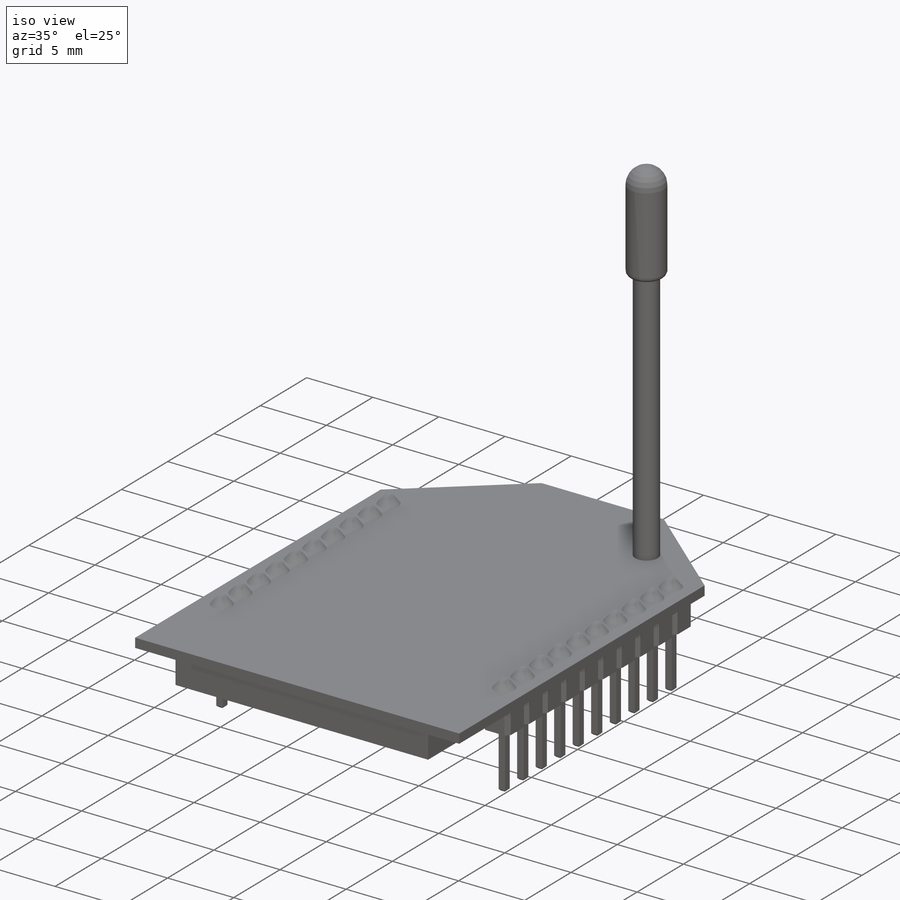
[diagram: iso view]
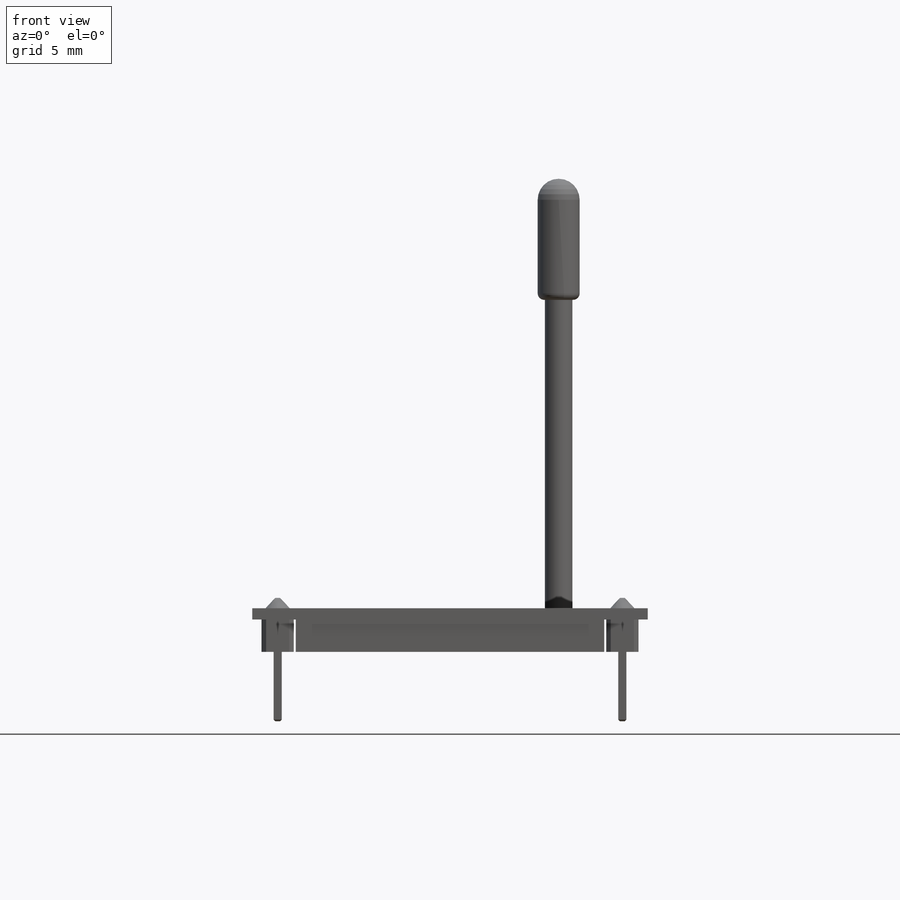
[diagram: front view]
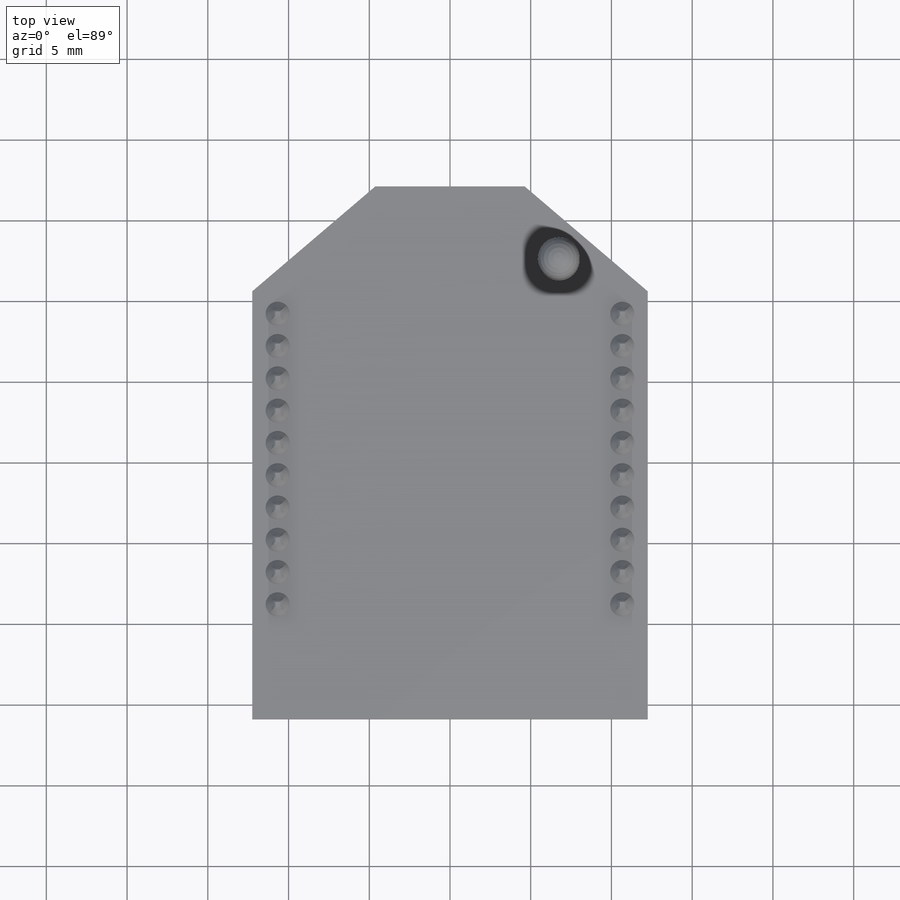
[diagram: top view]
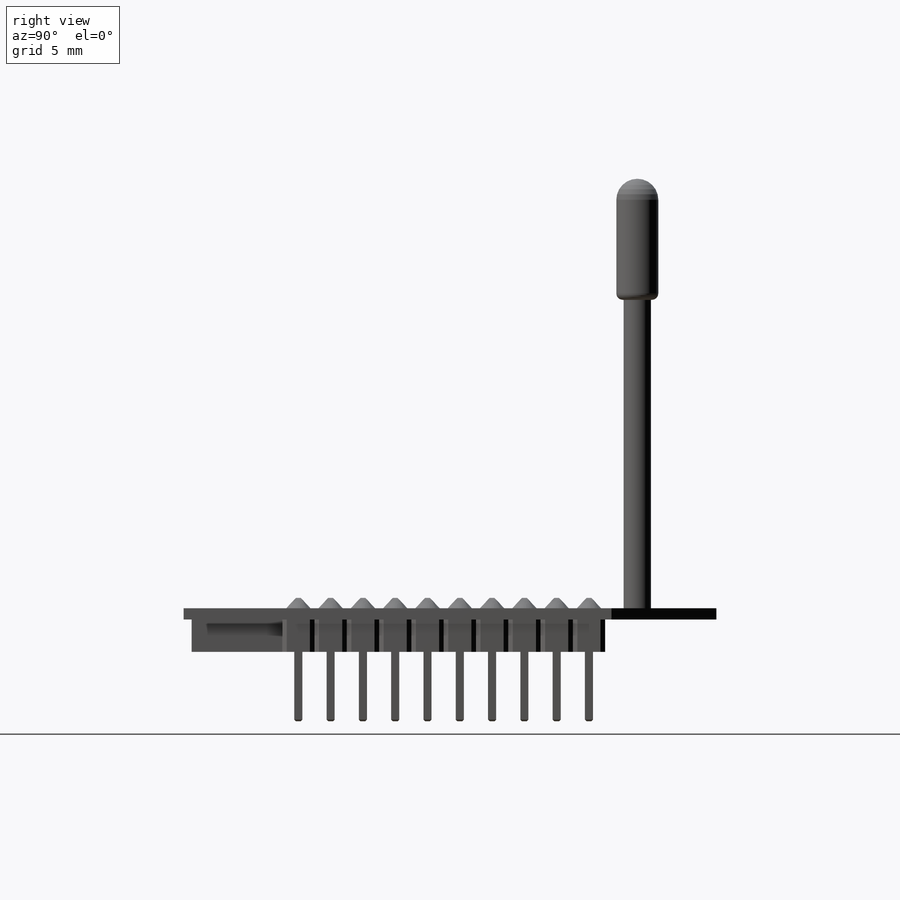
[diagram: right view]
SOLIDWORKS PART (.sldprt)
format: sldprt  version: not decoded by parser v0  size: 1,459,712 bytes
history: native  units: mm
features: sketch x13, extrude x5, cut_extrude x3, pattern_linear x3, plane x2, chamfer x2, material x1, revolve x1 (+16 scaffold rows collapsed)
feature tree (46):
  scaffold x16  (default folders/planes/origin — collapsed)
  material  "Material <not specified>"
  sketch  "Sketch1"  dims[D1=24.5mm D2=33.0mm D3=26.5mm D4=9.25mm D5=16.0mm]
  extrude  "Boss-Extrude1"  Depth=0.7mm
  sketch  "Sketch2"  dims[c1.D1=~1.434236mm c1.D2=0.8mm c2.D1=~21.348114mm]
  cut_extrude  "Cut-Extrude1"  [1 undecoded]
  pattern_linear  "LPattern1"  Count1=10 Count2=1 Spacing1=2mm Spacing2=10mm
  sketch  "Sketch3"  dims[D3=~0.956702mm D1=~12.102611mm D2=~6.72989mm]
  cut_extrude  "Cut-Extrude2"  [1 undecoded]
  sketch  "Sketch4"  dims[D1=1.7mm]
  extrude  "Boss-Extrude2"  Depth=26mm
  sketch  "Sketch5"  dims[D1=2.0mm D2=1.0mm]
  extrude  "Boss-Extrude3"  Depth=2mm
  sketch  "Sketch6"  dims[D1=19.1mm D2=0.5mm D3=24.2mm]
  extrude  "Boss-Extrude4"  Depth=2mm
  plane  "Plane1"
  sketch  "Sketch7"  dims[D3=0.4mm D1=2.6mm D2=7.5mm]
  revolve  "Revolve1"  Angle=360deg
  sketch  "Sketch8"  dims[D1=0.4mm D2=2.0mm]
  cut_extrude  "Cut-Extrude3"  [1 undecoded]
  pattern_linear  "LPattern2"  Count1=11 Count2=1 Spacing1=2mm Spacing2=10mm
  sketch  "Sketch9"  dims[D1=0.5mm]
  extrude  "Boss-Extrude5"  Depth=0.64mm
  chamfer  "Chamfer1"  Distance=0.1mm Angle=45deg
  plane  "Plane2"
  sketch  "Sketch10"
  sketch  "Sketch11"  dims[D1=1.5mm]
  sketch  "Sketch12"  dims[D1=1.5mm]
  sketch  "Sketch13"
  chamfer  "Loft2"  [1 undecoded]
  pattern_linear  "LPattern3"  Count1=10 Count2=1 Spacing1=2mm Spacing2=10mm
decode coverage: 21 of 27 modeling features carry decoded parameters
note: ~ marks probable driven/reference dimensions
note: 4 parameter values undecoded
summary: no parameter record found for 4 features
note: suppression state not decoded; provenance and decode notes live in map.json
